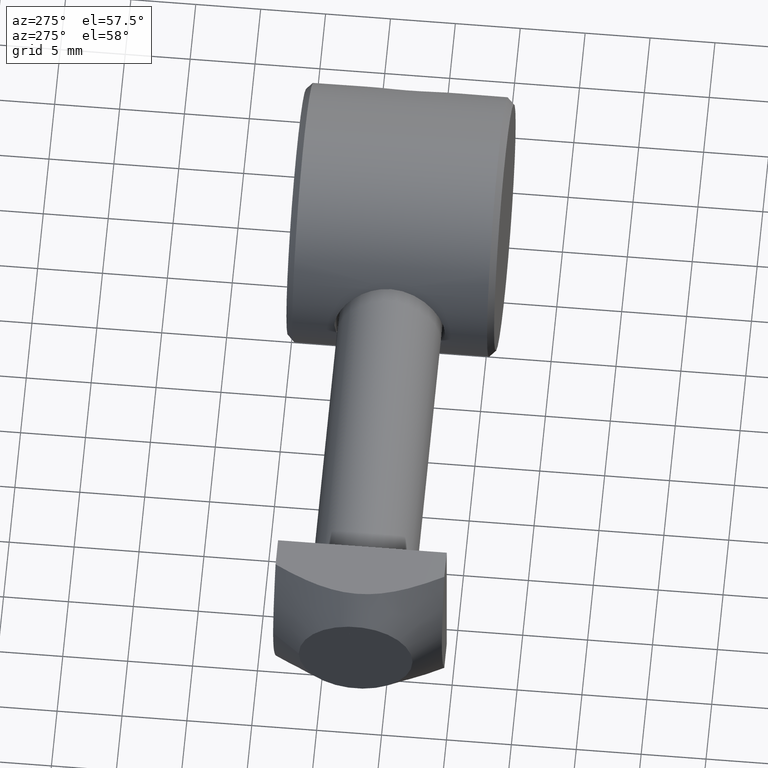
[diagram: clean part render]
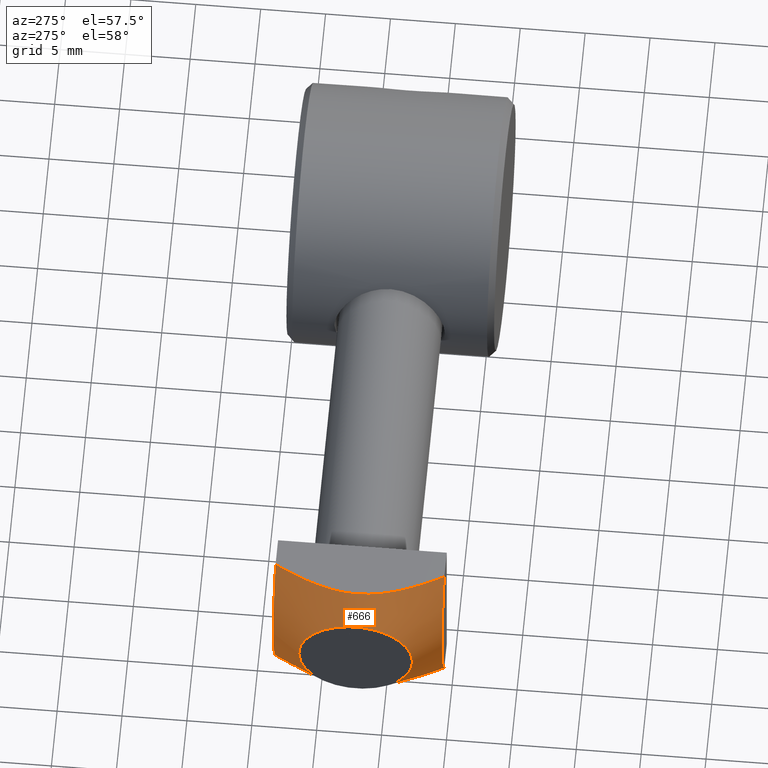
[diagram: same view with one face highlighted and labeled with its STEP entity id]
A machine part, auxiliary view. The second image highlights one B-rep face of the part: STEP entity #666.
In plain terms, the highlighted face is a freeform B-spline surface patch.
Its self-contained STEP definition (entity closure, byte-faithful):
#381=CARTESIAN_POINT('',(-36.201733334651635,-1.499999999994088,-6.499999999999998));
#382=VERTEX_POINT('',#381);
#389=CARTESIAN_POINT('',(-38.327633036136831,-1.499999999994088,0.0));
#390=VERTEX_POINT('',#389);
#391=CARTESIAN_POINT('',(-36.201733334651635,-1.499999999994088,-6.499999999999794));
#392=CARTESIAN_POINT('',(-36.529557071315139,-1.499999999994088,-5.912848338149615));
#393=CARTESIAN_POINT('',(-37.039856128614701,-1.499999999982265,-4.935940255374428));
#394=CARTESIAN_POINT('',(-37.709078106545803,-1.500000000022737,-3.366536166990874));
#395=CARTESIAN_POINT('',(-38.107651113880365,-1.499999999867669,-2.072374110626530));
#396=CARTESIAN_POINT('',(-38.296588462757882,-1.500000000217824,-0.881700095806656));
#397=CARTESIAN_POINT('',(-38.327633036136831,-1.499999999994088,-0.282034297807596));
#398=CARTESIAN_POINT('',(-38.327633036136831,-1.499999999994088,-8.881784E-016));
#399=B_SPLINE_CURVE_WITH_KNOTS('',3,(#391,#392,#393,#394,#395,#396,#397,#398),.UNSPECIFIED.,.F.,.U.,(4,1,1,1,1,4),(0.0,2.017883608308912,3.303099161466276,5.115860811620169,6.067965354631358,6.914426426632446),.UNSPECIFIED.);
#400=EDGE_CURVE('',#382,#390,#399,.T.);
#402=CARTESIAN_POINT('',(-36.201733334651635,-1.499999999994088,6.500000000000001));
#403=VERTEX_POINT('',#402);
#404=CARTESIAN_POINT('',(-38.327633036136831,-1.499999999994088,0.0));
#405=CARTESIAN_POINT('',(-38.327633036136831,-1.499999999994088,0.282034297807597));
#406=CARTESIAN_POINT('',(-38.296588462757427,-1.500000000216915,0.881700095806656));
#407=CARTESIAN_POINT('',(-38.107651113880365,-1.499999999866304,2.072374110626529));
#408=CARTESIAN_POINT('',(-37.709078106546713,-1.500000000023192,3.366536166990874));
#409=CARTESIAN_POINT('',(-37.039856128614247,-1.499999999982265,4.935940255374426));
#410=CARTESIAN_POINT('',(-36.529557071315139,-1.499999999994088,5.912848338149615));
#411=CARTESIAN_POINT('',(-36.201733334651635,-1.499999999994088,6.499999999999795));
#412=B_SPLINE_CURVE_WITH_KNOTS('',3,(#404,#405,#406,#407,#408,#409,#410,#411),.UNSPECIFIED.,.F.,.U.,(4,1,1,1,1,4),(0.0,0.846461072001089,1.798565615012273,3.611327265166168,4.896542818323531,6.914426426632445),.UNSPECIFIED.);
#413=EDGE_CURVE('',#390,#403,#412,.T.);
#437=CARTESIAN_POINT('',(-39.999999999840384,-3.618002557435830,0.0));
#438=VERTEX_POINT('',#437);
#439=CARTESIAN_POINT('',(-39.999999999840384,-12.381997442500504,-2.683200E-016));
#440=VERTEX_POINT('',#439);
#441=CARTESIAN_POINT('',(-39.999999999840384,-7.999999999968168,0.0));
#442=DIRECTION('',(-1.0,-6.123234E-017,0.0));
#443=DIRECTION('',(-6.123234E-017,1.0,6.123234E-017));
#444=AXIS2_PLACEMENT_3D('',#441,#442,#443);
#445=CIRCLE('',#444,4.381997442532338);
#446=EDGE_CURVE('',#438,#440,#445,.T.);
#448=CARTESIAN_POINT('',(-39.999999999840384,-7.999999999968168,0.0));
#449=DIRECTION('',(-1.0,-6.123234E-017,0.0));
#450=DIRECTION('',(-6.123234E-017,1.0,6.123234E-017));
#451=AXIS2_PLACEMENT_3D('',#448,#449,#450);
#452=CIRCLE('',#451,4.381997442532338);
#453=EDGE_CURVE('',#440,#438,#452,.T.);
#493=CARTESIAN_POINT('',(-36.201733334621622,-14.499999999994088,6.500000000000000));
#494=VERTEX_POINT('',#493);
#501=CARTESIAN_POINT('',(-36.201733334622077,-14.499999999994088,-6.499999999999998));
#502=VERTEX_POINT('',#501);
#503=CARTESIAN_POINT('',(-36.201733334621622,-14.499999999994088,6.500000000000179));
#504=CARTESIAN_POINT('',(-36.485402812584653,-14.499999999994088,5.991931221643727));
#505=CARTESIAN_POINT('',(-37.002611429278659,-14.500000000014552,5.010040436293638));
#506=CARTESIAN_POINT('',(-37.625419511695782,-14.499999999931333,3.582750773703828));
#507=CARTESIAN_POINT('',(-38.032920182501584,-14.500000000174168,2.322646331058993));
#508=CARTESIAN_POINT('',(-38.272840006071874,-14.499999999436113,1.145690457145933));
#509=CARTESIAN_POINT('',(-38.358305048656348,-14.500000000155978,-0.016868641297235));
#510=CARTESIAN_POINT('',(-38.267758671526735,-14.499999999953161,-1.188266389008622));
#511=CARTESIAN_POINT('',(-38.019011539728126,-14.500000000008640,-2.374274711454206));
#512=CARTESIAN_POINT('',(-37.606445712225650,-14.499999999979536,-3.629826402618161));
#513=CARTESIAN_POINT('',(-36.989528200458608,-14.500000000040473,-5.035309084283185));
#514=CARTESIAN_POINT('',(-36.480285229472884,-14.499999999994088,-6.001097115058364));
#515=CARTESIAN_POINT('',(-36.201733334622077,-14.499999999994088,-6.500000000000016));
#516=B_SPLINE_CURVE_WITH_KNOTS('',3,(#503,#504,#505,#506,#507,#508,#509,#510,#511,#512,#513,#514,#515),.UNSPECIFIED.,.F.,.U.,(4,1,1,1,1,1,1,1,1,1,4),(0.0,1.745971114440875,3.327371104074318,4.667530221139215,5.713079196290829,6.925453479333277,8.155282578259985,9.228116565139599,10.555282125759994,12.114432773976587,13.828893270008054),.UNSPECIFIED.);
#517=EDGE_CURVE('',#494,#502,#516,.T.);
#577=CARTESIAN_POINT('',(-36.201733334651635,-1.499999999994088,-6.499999999999794));
#578=CARTESIAN_POINT('',(-36.489893601474250,-2.016112046262606,-6.499999999999794));
#579=CARTESIAN_POINT('',(-37.009115731002112,-3.002687391247036,-6.500000000000110));
#580=CARTESIAN_POINT('',(-37.635598378391933,-4.443208278411021,-6.499999999999902));
#581=CARTESIAN_POINT('',(-38.029780495604427,-5.670961655257543,-6.500000000001053));
#582=CARTESIAN_POINT('',(-38.264522151447636,-6.814597398695241,-6.499999999997881));
#583=CARTESIAN_POINT('',(-38.358579616951374,-7.942887731216160,-6.500000000000751));
#584=CARTESIAN_POINT('',(-38.273069701404893,-9.190290514420212,-6.499999999999895));
#585=CARTESIAN_POINT('',(-37.993962222569735,-10.484271825340784,-6.500000000000139));
#586=CARTESIAN_POINT('',(-37.544377856462233,-11.782552270513861,-6.499999999999963));
#587=CARTESIAN_POINT('',(-36.936242893589224,-13.137565160851864,-6.500000000000004));
#588=CARTESIAN_POINT('',(-36.464439941395540,-14.029476961253749,-6.500000000000016));
#589=CARTESIAN_POINT('',(-36.201733334622077,-14.499999999994088,-6.500000000000016));
#590=B_SPLINE_CURVE_WITH_KNOTS('',3,(#577,#578,#579,#580,#581,#582,#583,#584,#585,#586,#587,#588,#589),.UNSPECIFIED.,.F.,.U.,(4,1,1,1,1,1,1,1,1,1,4),(0.0,1.773622073418273,3.342496642906074,4.708358363836096,5.635901581797085,6.840799363728147,8.096201392118291,9.375944470745178,10.803410572821390,12.211987669687037,13.828887645259446),.UNSPECIFIED.);
#591=EDGE_CURVE('',#382,#502,#590,.T.);
#603=CARTESIAN_POINT('',(-36.201733334651635,-1.499999999994088,6.499999999999795));
#604=CARTESIAN_POINT('',(-36.489893601473796,-2.016112046261696,6.499999999999795));
#605=CARTESIAN_POINT('',(-37.009115731002112,-3.002687391246127,6.500000000000115));
#606=CARTESIAN_POINT('',(-37.635598378389659,-4.443208278407838,6.499999999999895));
#607=CARTESIAN_POINT('',(-38.029780495605337,-5.670961655258452,6.500000000000885));
#608=CARTESIAN_POINT('',(-38.264522151448091,-6.814597398696606,6.499999999998211));
#609=CARTESIAN_POINT('',(-38.358579616950465,-7.942887731217070,6.500000000000791));
#610=CARTESIAN_POINT('',(-38.273069701404893,-9.190290514422031,6.499999999999497));
#611=CARTESIAN_POINT('',(-37.993962222569280,-10.484271825341239,6.499999999999601));
#612=CARTESIAN_POINT('',(-37.544377856462688,-11.782552270516589,6.500000000000128));
#613=CARTESIAN_POINT('',(-36.936242893588314,-13.137565160850954,6.499999999999893));
#614=CARTESIAN_POINT('',(-36.464439941395085,-14.029476961254204,6.500000000000179));
#615=CARTESIAN_POINT('',(-36.201733334621622,-14.499999999994088,6.500000000000179));
#616=B_SPLINE_CURVE_WITH_KNOTS('',3,(#603,#604,#605,#606,#607,#608,#609,#610,#611,#612,#613,#614,#615),.UNSPECIFIED.,.F.,.U.,(4,1,1,1,1,1,1,1,1,1,4),(0.0,1.773622073414402,3.342496642905065,4.708358363837534,5.635901581797992,6.840799363729969,8.096201392120099,9.375944470746504,10.803410572822845,12.211987669687661,13.828887645259680),.UNSPECIFIED.);
#617=EDGE_CURVE('',#403,#494,#616,.T.);
#624=CARTESIAN_POINT('',(-39.999999999855135,-3.618002557454476,5.485858E-016));
#625=CARTESIAN_POINT('',(-39.999999999855135,-3.618002557454476,4.381997442513692));
#626=CARTESIAN_POINT('',(-39.999999999855135,-7.999999999968168,4.381997442513691));
#627=CARTESIAN_POINT('',(-39.999999999855135,-12.381997442481856,4.381997442513690));
#628=CARTESIAN_POINT('',(-39.999999999855135,-12.381997442481858,-5.485858E-016));
#629=CARTESIAN_POINT('',(-39.999999999855135,-12.381997442481856,-4.381997442513692));
#630=CARTESIAN_POINT('',(-39.999999999855135,-7.999999999968166,-4.381997442513691));
#631=CARTESIAN_POINT('',(-39.999999999855135,-3.618002557454476,-4.381997442513690));
#632=CARTESIAN_POINT('',(-39.999999999855135,-3.618002557454476,5.485858E-016));
#633=CARTESIAN_POINT('',(-36.201730399353913,1.192391872904303,8.431375E-016));
#634=CARTESIAN_POINT('',(-36.201730399353913,1.192391872904302,9.192391872872470));
#635=CARTESIAN_POINT('',(-36.201730399353913,-7.999999999968168,9.192391872872470));
#636=CARTESIAN_POINT('',(-36.201730399353913,-17.192391872840638,9.192391872872470));
#637=CARTESIAN_POINT('',(-36.201730399353913,-17.192391872840638,-8.431375E-016));
#638=CARTESIAN_POINT('',(-36.201730399353913,-17.192391872840638,-9.192391872872470));
#639=CARTESIAN_POINT('',(-36.201730399353913,-7.999999999968166,-9.192391872872470));
#640=CARTESIAN_POINT('',(-36.201730399353913,1.192391872904304,-9.192391872872470));
#641=CARTESIAN_POINT('',(-36.201730399353913,1.192391872904303,8.431375E-016));
#649=(BOUNDED_SURFACE()B_SPLINE_SURFACE(2,1,((#624,#633),(#625,#634),(#626,#635),(#627,#636),(#628,#637),(#629,#638),(#630,#639),(#631,#640),(#632,#641)),.UNSPECIFIED.,.T.,.F.,.U.)B_SPLINE_SURFACE_WITH_KNOTS((3,2,2,2,3),(2,2),(0.0,0.250000000000000,0.500000000000000,0.750000000000000,1.0),(-7.066405040389162,-0.937233274667593),.UNSPECIFIED.)GEOMETRIC_REPRESENTATION_ITEM()RATIONAL_B_SPLINE_SURFACE(((1.0,1.0),(0.707106781186548,0.707106781186548),(1.0,1.0),(0.707106781186548,0.707106781186548),(1.0,1.0),(0.707106781186548,0.707106781186548),(1.0,1.0),(0.707106781186548,0.707106781186548),(1.0,1.0)))REPRESENTATION_ITEM('')SURFACE());
#650=CARTESIAN_POINT('',(-39.999999999840384,-3.618002557435796,5.485858E-016));
#651=DIRECTION('',(0.619703566107200,0.784835963851058,4.805734E-017));
#652=VECTOR('',#651,2.698656349855611);
#653=LINE('',#650,#652);
#654=EDGE_CURVE('',#438,#390,#653,.T.);
#655=ORIENTED_EDGE('',*,*,#654,.T.);
#656=ORIENTED_EDGE('',*,*,#400,.F.);
#657=ORIENTED_EDGE('',*,*,#591,.T.);
#658=ORIENTED_EDGE('',*,*,#517,.F.);
#659=ORIENTED_EDGE('',*,*,#617,.F.);
#660=ORIENTED_EDGE('',*,*,#413,.F.);
#661=ORIENTED_EDGE('',*,*,#654,.F.);
#662=ORIENTED_EDGE('',*,*,#453,.F.);
#663=ORIENTED_EDGE('',*,*,#446,.F.);
#664=EDGE_LOOP('',(#655,#656,#657,#658,#659,#660,#661,#662,#663));
#665=FACE_OUTER_BOUND('',#664,.T.);
#666=ADVANCED_FACE('',(#665),#649,.T.);